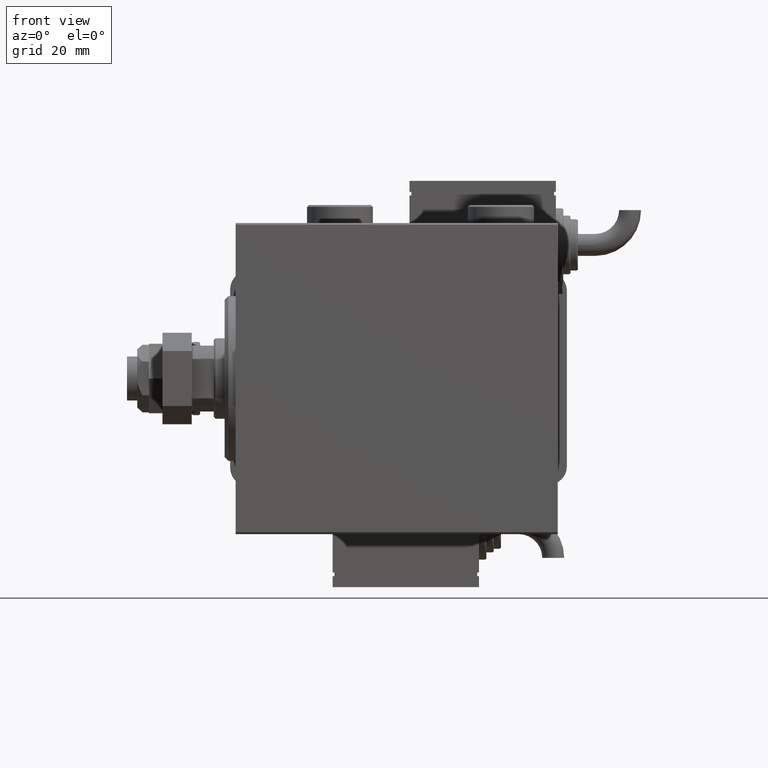
[diagram: clean part render]
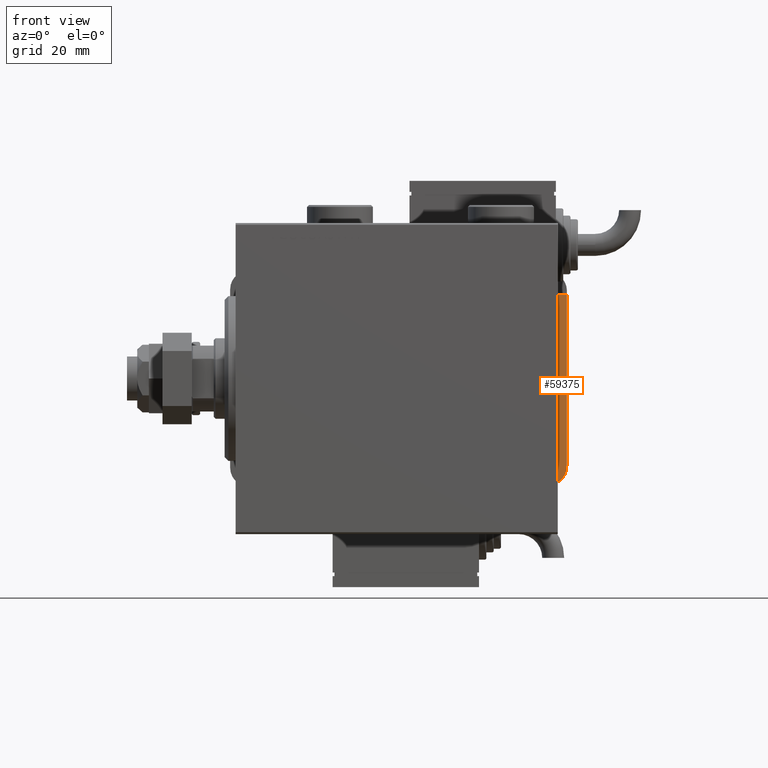
[diagram: same view with one face highlighted and labeled with its STEP entity id]
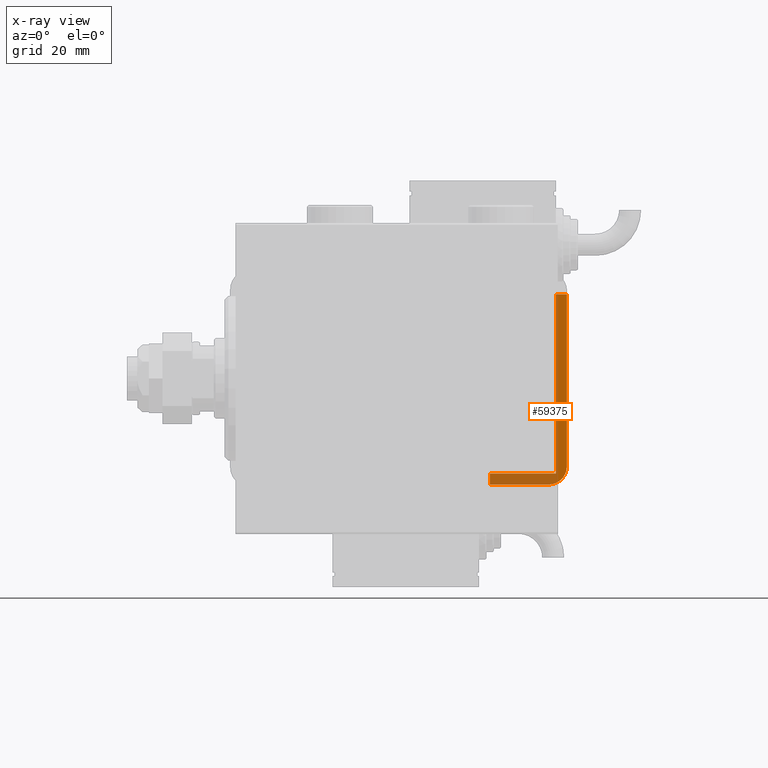
[diagram: x-ray of the same camera — body ghosted, the highlighted face saturated]
A machine part, front view. The second image highlights one B-rep face of the part: STEP entity #59375.
The next image is the same camera in x-ray: the body ghosted, the highlighted face saturated — about 40% of this face is hidden behind the body in this view.
In plain terms, the highlighted planar face has unit normal (0, 1, 0).
Its self-contained STEP definition (entity closure, byte-faithful):
#946 = EDGE_CURVE ( 'NONE', #3259, #1087, #42990, .T. ) ;
#1087 = VERTEX_POINT ( 'NONE', #57728 ) ;
#2882 = DIRECTION ( 'NONE',  ( -2.079047426506382950E-15, -1.000000000000000000, 0.000000000000000000 ) ) ;
#3259 = VERTEX_POINT ( 'NONE', #48119 ) ;
#4526 = FACE_OUTER_BOUND ( 'NONE', #15538, .T. ) ;
#7834 = CARTESIAN_POINT ( 'NONE',  ( -28.99999999999999645, -9.421223957302265857E-15, 3.000000000000002665 ) ) ;
#8230 = DIRECTION ( 'NONE',  ( -0.000000000000000000, -0.000000000000000000, -1.000000000000000000 ) ) ;
#9055 = DIRECTION ( 'NONE',  ( -0.000000000000000000, -0.000000000000000000, -1.000000000000000000 ) ) ;
#10939 = LINE ( 'NONE', #7834, #49429 ) ;
#10957 = CARTESIAN_POINT ( 'NONE',  ( 23.00000000000000000, 0.000000000000000000, 0.000000000000000000 ) ) ;
#11018 = CARTESIAN_POINT ( 'NONE',  ( -23.99999999999999645, 1.006139616066548115E-13, 5.000000000000004441 ) ) ;
#11498 = CARTESIAN_POINT ( 'NONE',  ( -28.99999999999999645, -9.421223957302264279E-15, 21.00000000000000355 ) ) ;
#12697 = VERTEX_POINT ( 'NONE', #10957 ) ;
#13599 = ORIENTED_EDGE ( 'NONE', *, *, #28721, .T. ) ;
#13804 = DIRECTION ( 'NONE',  ( -1.000000000000000000, -0.000000000000000000, -0.000000000000000000 ) ) ;
#14102 = DIRECTION ( 'NONE',  ( 2.079047426506382950E-15, 1.000000000000000000, -0.000000000000000000 ) ) ;
#15059 = DIRECTION ( 'NONE',  ( -1.000000000000000000, 2.079047426506382555E-15, 0.000000000000000000 ) ) ;
#15341 = ORIENTED_EDGE ( 'NONE', *, *, #50126, .F. ) ;
#15538 = EDGE_LOOP ( 'NONE', ( #46504, #52772, #15341, #59907, #13599, #52996, #29363 ) ) ;
#16312 = CARTESIAN_POINT ( 'NONE',  ( 23.00000000000000000, 0.000000000000000000, 0.000000000000000000 ) ) ;
#17782 = EDGE_CURVE ( 'NONE', #35648, #12697, #35542, .T. ) ;
#18158 = PLANE ( 'NONE',  #60673 ) ;
#23364 = VECTOR ( 'NONE', #8230, 1000.000000000000000 ) ;
#23438 = CARTESIAN_POINT ( 'NONE',  ( 1.000000000000014655, -9.421223957302264279E-15, 21.00000000000000355 ) ) ;
#23925 = CARTESIAN_POINT ( 'NONE',  ( -28.99999999999999645, -9.421223957302265857E-15, 89.00000000000000000 ) ) ;
#25521 = VECTOR ( 'NONE', #50122, 1000.000000000000000 ) ;
#27635 = LINE ( 'NONE', #41893, #29987 ) ;
#28721 = EDGE_CURVE ( 'NONE', #52998, #3259, #51543, .T. ) ;
#29363 = ORIENTED_EDGE ( 'NONE', *, *, #42774, .T. ) ;
#29599 = EDGE_CURVE ( 'NONE', #52938, #35648, #10939, .T. ) ;
#29967 = AXIS2_PLACEMENT_3D ( 'NONE', #11018, #2882, #15059 ) ;
#29987 = VECTOR ( 'NONE', #59913, 1000.000000000000000 ) ;
#30077 = CARTESIAN_POINT ( 'NONE',  ( 23.00000000000000000, 0.000000000000000000, 3.000000000000002665 ) ) ;
#32330 = DIRECTION ( 'NONE',  ( 1.000000000000000000, 0.000000000000000000, 0.000000000000000000 ) ) ;
#35542 = LINE ( 'NONE', #16312, #25521 ) ;
#35648 = VERTEX_POINT ( 'NONE', #30077 ) ;
#36441 = LINE ( 'NONE', #37370, #23364 ) ;
#37370 = CARTESIAN_POINT ( 'NONE',  ( -26.00000000000000000, -3.184081677783118191E-15, 89.00000000000000000 ) ) ;
#41474 = VECTOR ( 'NONE', #9055, 1000.000000000000000 ) ;
#41893 = CARTESIAN_POINT ( 'NONE',  ( 28.99999999999999645, -9.421223957302265857E-15, 0.000000000000000000 ) ) ;
#42386 = VERTEX_POINT ( 'NONE', #46622 ) ;
#42774 = EDGE_CURVE ( 'NONE', #1087, #12697, #27635, .T. ) ;
#42990 = CIRCLE ( 'NONE', #29967, 5.000000000000000888 ) ;
#46093 = LINE ( 'NONE', #23438, #51709 ) ;
#46504 = ORIENTED_EDGE ( 'NONE', *, *, #17782, .F. ) ;
#46622 = CARTESIAN_POINT ( 'NONE',  ( -25.99999999999999645, -9.421223957302264279E-15, 21.00000000000000355 ) ) ;
#46692 = CARTESIAN_POINT ( 'NONE',  ( 28.99999999999999645, -9.421223957302265857E-15, 89.00000000000000000 ) ) ;
#46906 = CARTESIAN_POINT ( 'NONE',  ( -26.00000000000000000, -3.184081677783118191E-15, 3.000000000000002665 ) ) ;
#48119 = CARTESIAN_POINT ( 'NONE',  ( -28.99999999999999645, -9.421223957302265857E-15, 5.000000000000004441 ) ) ;
#49429 = VECTOR ( 'NONE', #32330, 1000.000000000000000 ) ;
#50122 = DIRECTION ( 'NONE',  ( -0.000000000000000000, -0.000000000000000000, -1.000000000000000000 ) ) ;
#50126 = EDGE_CURVE ( 'NONE', #42386, #52938, #36441, .T. ) ;
#51543 = LINE ( 'NONE', #23925, #41474 ) ;
#51652 = DIRECTION ( 'NONE',  ( -1.000000000000000000, 2.079047426506382950E-15, 0.000000000000000000 ) ) ;
#51709 = VECTOR ( 'NONE', #13804, 1000.000000000000000 ) ;
#52772 = ORIENTED_EDGE ( 'NONE', *, *, #29599, .F. ) ;
#52938 = VERTEX_POINT ( 'NONE', #46906 ) ;
#52996 = ORIENTED_EDGE ( 'NONE', *, *, #946, .T. ) ;
#52998 = VERTEX_POINT ( 'NONE', #11498 ) ;
#57728 = CARTESIAN_POINT ( 'NONE',  ( -23.99999999999999289, 1.007682896475360021E-13, 0.000000000000000000 ) ) ;
#59375 = ADVANCED_FACE ( 'NONE', ( #4526 ), #18158, .F. ) ;
#59382 = EDGE_CURVE ( 'NONE', #42386, #52998, #46093, .T. ) ;
#59907 = ORIENTED_EDGE ( 'NONE', *, *, #59382, .T. ) ;
#59913 = DIRECTION ( 'NONE',  ( 1.000000000000000000, -2.079047426506382950E-15, -0.000000000000000000 ) ) ;
#60673 = AXIS2_PLACEMENT_3D ( 'NONE', #46692, #14102, #51652 ) ;